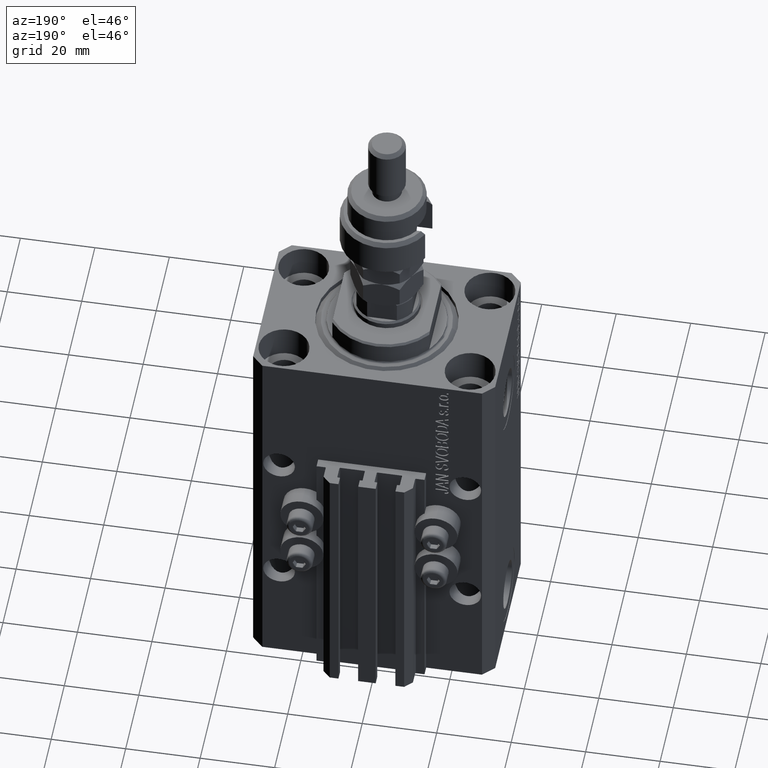
[diagram: clean part render]
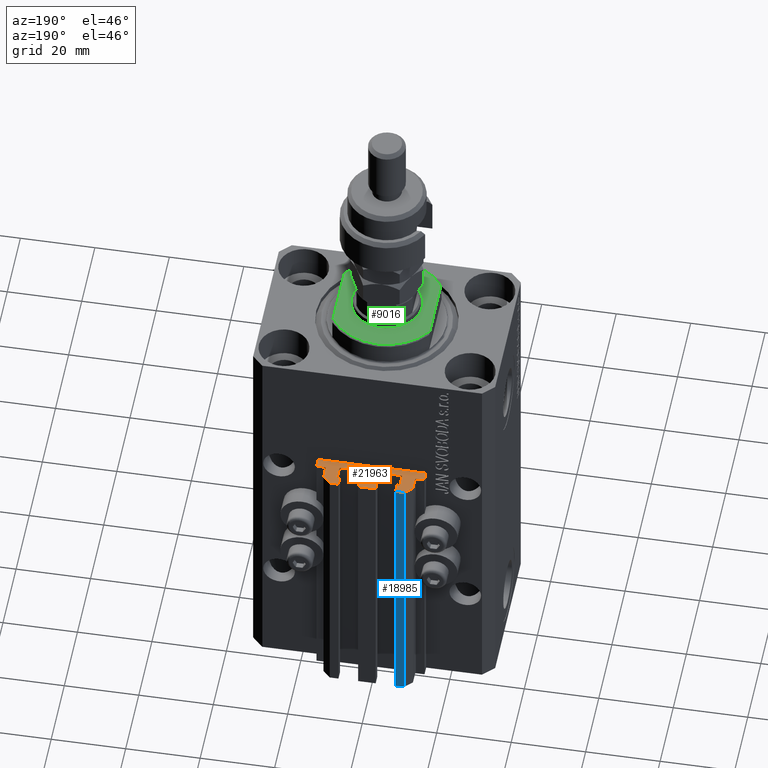
[diagram: same view with three faces highlighted in distinct colors, each labeled with its STEP entity id]
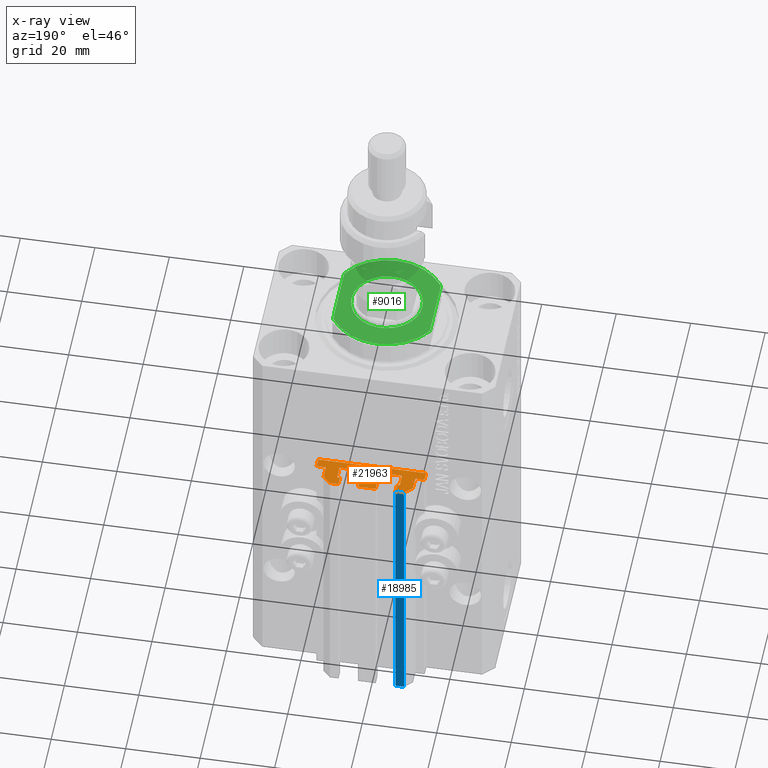
[diagram: x-ray of the same camera — body ghosted, the three highlighted faces saturated]
A machine part, auxiliary view with three faces highlighted in distinct colors.
The next image is the same camera in x-ray (body ghosted, the three faces saturated) — at least one of them is partly hidden behind the body in this view.
Their STEP definitions:

[orange] entity #21963 — the highlighted planar face has unit normal (0, 0, 1).
#43 = CARTESIAN_POINT ( 'NONE',  ( 12.00000000000000178, 28.49999999999950973, -33.00000000000000000 ) ) ;
#513 = VERTEX_POINT ( 'NONE', #1099 ) ;
#530 = DIRECTION ( 'NONE',  ( 0.000000000000000000, 0.000000000000000000, 1.000000000000000000 ) ) ;
#533 = ORIENTED_EDGE ( 'NONE', *, *, #5880, .T. ) ;
#687 = VECTOR ( 'NONE', #7411, 1000.000000000000000 ) ;
#1099 = CARTESIAN_POINT ( 'NONE',  ( -7.650000000000000355, 30.49999999999948486, -33.00000000000000000 ) ) ;
#1314 = DIRECTION ( 'NONE',  ( 0.000000000000000000, -1.000000000000000000, 0.000000000000000000 ) ) ;
#1765 = EDGE_CURVE ( 'NONE', #29212, #40012, #26817, .T. ) ;
#2378 = DIRECTION ( 'NONE',  ( -5.421010862427496532E-16, -1.000000000000000000, 0.000000000000000000 ) ) ;
#2570 = AXIS2_PLACEMENT_3D ( 'NONE', #18717, #3229, #15104 ) ;
#2592 = DIRECTION ( 'NONE',  ( 1.000000000000000000, 0.000000000000000000, 0.000000000000000000 ) ) ;
#2721 = FACE_OUTER_BOUND ( 'NONE', #9311, .T. ) ;
#3171 = DIRECTION ( 'NONE',  ( 1.000000000000000000, 0.000000000000000000, 0.000000000000000000 ) ) ;
#3193 = LINE ( 'NONE', #7581, #31401 ) ;
#3229 = DIRECTION ( 'NONE',  ( 0.000000000000000000, 0.000000000000000000, 1.000000000000000000 ) ) ;
#3578 = ORIENTED_EDGE ( 'NONE', *, *, #33922, .T. ) ;
#3581 = ORIENTED_EDGE ( 'NONE', *, *, #1765, .T. ) ;
#4028 = VERTEX_POINT ( 'NONE', #44834 ) ;
#4196 = DIRECTION ( 'NONE',  ( 1.000000000000000000, -6.308085367188365195E-15, 0.000000000000000000 ) ) ;
#4499 = CARTESIAN_POINT ( 'NONE',  ( -1.600000000000000533, 27.89999999999950120, -33.00000000000000000 ) ) ;
#4636 = ORIENTED_EDGE ( 'NONE', *, *, #36024, .T. ) ;
#4679 = CARTESIAN_POINT ( 'NONE',  ( -10.00000000000000000, 30.49999999999948841, -33.00000000000000000 ) ) ;
#4769 = CARTESIAN_POINT ( 'NONE',  ( -12.00000000000000000, 25.19999999999949125, -33.00000000000000000 ) ) ;
#4836 = DIRECTION ( 'NONE',  ( 1.000000000000000000, 0.000000000000000000, 0.000000000000000000 ) ) ;
#4883 = CARTESIAN_POINT ( 'NONE',  ( 2.349999999999999645, 28.09999999999950049, -33.00000000000000000 ) ) ;
#4884 = EDGE_CURVE ( 'NONE', #18610, #48836, #20412, .T. ) ;
#5089 = CARTESIAN_POINT ( 'NONE',  ( -1.600000000000003197, 27.89999999999950120, -33.00000000000000000 ) ) ;
#5157 = VECTOR ( 'NONE', #22567, 1000.000000000000000 ) ;
#5776 = VECTOR ( 'NONE', #30913, 1000.000000000000000 ) ;
#5880 = EDGE_CURVE ( 'NONE', #21437, #513, #20367, .T. ) ;
#5882 = VECTOR ( 'NONE', #2378, 1000.000000000000000 ) ;
#6109 = VECTOR ( 'NONE', #38719, 1000.000000000000000 ) ;
#6239 = EDGE_CURVE ( 'NONE', #31762, #18610, #9702, .T. ) ;
#6283 = VECTOR ( 'NONE', #45563, 1000.000000000000000 ) ;
#6332 = CARTESIAN_POINT ( 'NONE',  ( 8.200000000000001066, 24.69999999999949125, -33.00000000000000000 ) ) ;
#6499 = CARTESIAN_POINT ( 'NONE',  ( 8.400000000000000355, 27.89999999999950475, -33.00000000000000000 ) ) ;
#6786 = EDGE_CURVE ( 'NONE', #48562, #30151, #23658, .T. ) ;
#6904 = LINE ( 'NONE', #42510, #16391 ) ;
#7168 = VERTEX_POINT ( 'NONE', #36307 ) ;
#7225 = EDGE_CURVE ( 'NONE', #48562, #21437, #20317, .T. ) ;
#7228 = VERTEX_POINT ( 'NONE', #5089 ) ;
#7292 = VERTEX_POINT ( 'NONE', #43247 ) ;
#7366 = VERTEX_POINT ( 'NONE', #4769 ) ;
#7411 = DIRECTION ( 'NONE',  ( -1.000000000000000000, 0.000000000000000000, 0.000000000000000000 ) ) ;
#7439 = VERTEX_POINT ( 'NONE', #16147 ) ;
#7549 = LINE ( 'NONE', #46786, #13134 ) ;
#7581 = CARTESIAN_POINT ( 'NONE',  ( -7.650000000000000355, 30.49999999999948486, -33.00000000000000000 ) ) ;
#7924 = AXIS2_PLACEMENT_3D ( 'NONE', #44562, #39697, #4836 ) ;
#7998 = EDGE_CURVE ( 'NONE', #44729, #37311, #50895, .T. ) ;
#8256 = DIRECTION ( 'NONE',  ( 1.084202172485506406E-15, 1.000000000000000000, 0.000000000000000000 ) ) ;
#8319 = VECTOR ( 'NONE', #20824, 1000.000000000000000 ) ;
#8883 = DIRECTION ( 'NONE',  ( 1.000000000000000000, 6.308085367188405427E-15, 0.000000000000000000 ) ) ;
#9278 = CIRCLE ( 'NONE', #24935, 0.1999999999999981515 ) ;
#9311 = EDGE_LOOP ( 'NONE', ( #48949, #16827, #23021, #3578, #21694, #3581, #42997, #9587, #12821, #21623, #31458, #48627, #23814, #44281, #12456, #25205, #50176, #18412, #16163, #14926, #4636, #12020, #48675, #15819, #20747, #12213, #20433, #50027, #41443, #15747, #533, #37051, #13530, #31347, #38616, #18144 ) ) ;
#9442 = AXIS2_PLACEMENT_3D ( 'NONE', #41915, #14306, #34430 ) ;
#9587 = ORIENTED_EDGE ( 'NONE', *, *, #22373, .T. ) ;
#9702 = LINE ( 'NONE', #30081, #6283 ) ;
#9876 = CARTESIAN_POINT ( 'NONE',  ( -1.800000000000000933, 28.09999999999949694, -33.00000000000000000 ) ) ;
#10465 = DIRECTION ( 'NONE',  ( 1.000000000000000000, 0.000000000000000000, 0.000000000000000000 ) ) ;
#10921 = CARTESIAN_POINT ( 'NONE',  ( -8.199999999999997513, 27.89999999999948699, -33.00000000000000000 ) ) ;
#10945 = CARTESIAN_POINT ( 'NONE',  ( -8.199999999999997513, 28.09999999999948628, -33.00000000000000000 ) ) ;
#10953 = CARTESIAN_POINT ( 'NONE',  ( 14.49999999999999645, 22.49999999999949907, -33.00000000000000000 ) ) ;
#10983 = EDGE_CURVE ( 'NONE', #40272, #7366, #6904, .T. ) ;
#11125 = VECTOR ( 'NONE', #24243, 1000.000000000000000 ) ;
#11293 = CARTESIAN_POINT ( 'NONE',  ( 14.49999999999999822, 24.99999999999950617, -33.00000000000000000 ) ) ;
#11435 = VERTEX_POINT ( 'NONE', #21606 ) ;
#11618 = CARTESIAN_POINT ( 'NONE',  ( -8.400000000000000355, 24.69999999999949480, -33.00000000000000000 ) ) ;
#11716 = DIRECTION ( 'NONE',  ( -1.000000000000000000, 1.476360405086644852E-15, 0.000000000000000000 ) ) ;
#12020 = ORIENTED_EDGE ( 'NONE', *, *, #13151, .T. ) ;
#12213 = ORIENTED_EDGE ( 'NONE', *, *, #45773, .T. ) ;
#12456 = ORIENTED_EDGE ( 'NONE', *, *, #7998, .F. ) ;
#12815 = VERTEX_POINT ( 'NONE', #17434 ) ;
#12821 = ORIENTED_EDGE ( 'NONE', *, *, #30887, .T. ) ;
#13134 = VECTOR ( 'NONE', #4196, 1000.000000000000000 ) ;
#13151 = EDGE_CURVE ( 'NONE', #42183, #14526, #7549, .T. ) ;
#13393 = CARTESIAN_POINT ( 'NONE',  ( 7.649999999999995026, 30.49999999999949196, -33.00000000000000000 ) ) ;
#13471 = DIRECTION ( 'NONE',  ( 1.000000000000000000, 0.000000000000000000, 0.000000000000000000 ) ) ;
#13530 = ORIENTED_EDGE ( 'NONE', *, *, #47695, .T. ) ;
#13588 = DIRECTION ( 'NONE',  ( 0.000000000000000000, -1.000000000000000000, 0.000000000000000000 ) ) ;
#13825 = CARTESIAN_POINT ( 'NONE',  ( 12.00000000000000355, 25.19999999999951257, -33.00000000000000000 ) ) ;
#14306 = DIRECTION ( 'NONE',  ( 0.000000000000000000, 0.000000000000000000, 1.000000000000000000 ) ) ;
#14407 = LINE ( 'NONE', #15178, #5776 ) ;
#14419 = CARTESIAN_POINT ( 'NONE',  ( 2.349999999999999645, 28.09999999999950049, -33.00000000000000000 ) ) ;
#14526 = VERTEX_POINT ( 'NONE', #9876 ) ;
#14926 = ORIENTED_EDGE ( 'NONE', *, *, #51072, .F. ) ;
#14972 = VECTOR ( 'NONE', #31979, 1000.000000000000000 ) ;
#15032 = VECTOR ( 'NONE', #34506, 1000.000000000000000 ) ;
#15104 = DIRECTION ( 'NONE',  ( 1.000000000000000000, 0.000000000000000000, 0.000000000000000000 ) ) ;
#15178 = CARTESIAN_POINT ( 'NONE',  ( 1.600000000000000533, 24.69999999999949480, -33.00000000000000000 ) ) ;
#15186 = VECTOR ( 'NONE', #8256, 1000.000000000000000 ) ;
#15727 = AXIS2_PLACEMENT_3D ( 'NONE', #29565, #25431, #48943 ) ;
#15747 = ORIENTED_EDGE ( 'NONE', *, *, #7225, .T. ) ;
#15815 = VERTEX_POINT ( 'NONE', #44667 ) ;
#15819 = ORIENTED_EDGE ( 'NONE', *, *, #49599, .T. ) ;
#15822 = CARTESIAN_POINT ( 'NONE',  ( -2.350000000000003197, 28.09999999999950049, -33.00000000000000000 ) ) ;
#16147 = CARTESIAN_POINT ( 'NONE',  ( -8.399999999999998579, 24.69999999999949480, -33.00000000000000000 ) ) ;
#16163 = ORIENTED_EDGE ( 'NONE', *, *, #26860, .T. ) ;
#16266 = DIRECTION ( 'NONE',  ( 3.614007241618365534E-16, -1.000000000000000000, 0.000000000000000000 ) ) ;
#16391 = VECTOR ( 'NONE', #26519, 1000.000000000000000 ) ;
#16410 = EDGE_CURVE ( 'NONE', #7168, #12815, #29752, .T. ) ;
#16418 = EDGE_CURVE ( 'NONE', #31762, #7366, #20684, .T. ) ;
#16423 = LINE ( 'NONE', #18120, #41430 ) ;
#16827 = ORIENTED_EDGE ( 'NONE', *, *, #29970, .T. ) ;
#16937 = VERTEX_POINT ( 'NONE', #4883 ) ;
#16974 = CARTESIAN_POINT ( 'NONE',  ( -7.650000000000000355, 28.09999999999948628, -33.00000000000000000 ) ) ;
#17269 = CIRCLE ( 'NONE', #37050, 0.1999999999999979294 ) ;
#17434 = CARTESIAN_POINT ( 'NONE',  ( 8.400000000000000355, 24.69999999999949125, -33.00000000000000000 ) ) ;
#17475 = CARTESIAN_POINT ( 'NONE',  ( -12.00000000000000000, 28.49999999999948841, -33.00000000000000000 ) ) ;
#17620 = EDGE_CURVE ( 'NONE', #47066, #19323, #44590, .T. ) ;
#17887 = AXIS2_PLACEMENT_3D ( 'NONE', #47517, #530, #35878 ) ;
#18120 = CARTESIAN_POINT ( 'NONE',  ( -10.00000000000000000, 30.49999999999948841, -33.00000000000000000 ) ) ;
#18144 = ORIENTED_EDGE ( 'NONE', *, *, #6239, .T. ) ;
#18412 = ORIENTED_EDGE ( 'NONE', *, *, #40979, .T. ) ;
#18457 = PLANE ( 'NONE',  #48808 ) ;
#18610 = VERTEX_POINT ( 'NONE', #40359 ) ;
#18709 = VECTOR ( 'NONE', #24693, 1000.000000000000000 ) ;
#18717 = CARTESIAN_POINT ( 'NONE',  ( -1.800000000000000933, 24.69999999999949480, -33.00000000000000000 ) ) ;
#19222 = DIRECTION ( 'NONE',  ( -6.776263578034385456E-17, -1.000000000000000000, 0.000000000000000000 ) ) ;
#19224 = CIRCLE ( 'NONE', #24950, 0.1999999999999987899 ) ;
#19249 = EDGE_CURVE ( 'NONE', #40012, #11435, #47954, .T. ) ;
#19323 = VERTEX_POINT ( 'NONE', #45840 ) ;
#19472 = LINE ( 'NONE', #4499, #34926 ) ;
#19542 = LINE ( 'NONE', #35282, #15032 ) ;
#19765 = VECTOR ( 'NONE', #13588, 1000.000000000000000 ) ;
#20295 = VECTOR ( 'NONE', #37874, 1000.000000000000000 ) ;
#20317 = LINE ( 'NONE', #36059, #18709 ) ;
#20326 = AXIS2_PLACEMENT_3D ( 'NONE', #10921, #32006, #3171 ) ;
#20367 = LINE ( 'NONE', #36104, #20295 ) ;
#20412 = LINE ( 'NONE', #32294, #22997 ) ;
#20433 = ORIENTED_EDGE ( 'NONE', *, *, #28336, .F. ) ;
#20521 = CARTESIAN_POINT ( 'NONE',  ( -1.800000000000000933, 27.89999999999950120, -33.00000000000000000 ) ) ;
#20602 = CARTESIAN_POINT ( 'NONE',  ( 7.649999999999995026, 30.49999999999949196, -33.00000000000000000 ) ) ;
#20684 = CIRCLE ( 'NONE', #15727, 0.2000000000000005107 ) ;
#20747 = ORIENTED_EDGE ( 'NONE', *, *, #17620, .F. ) ;
#20824 = DIRECTION ( 'NONE',  ( -0.7071067811865507924, 0.7071067811865441310, 0.000000000000000000 ) ) ;
#21428 = EDGE_CURVE ( 'NONE', #7168, #37311, #28851, .T. ) ;
#21429 = VERTEX_POINT ( 'NONE', #44337 ) ;
#21437 = VERTEX_POINT ( 'NONE', #16974 ) ;
#21470 = DIRECTION ( 'NONE',  ( 0.000000000000000000, 0.000000000000000000, 1.000000000000000000 ) ) ;
#21606 = CARTESIAN_POINT ( 'NONE',  ( 9.999999999999994671, 30.49999999999949551, -33.00000000000000000 ) ) ;
#21623 = ORIENTED_EDGE ( 'NONE', *, *, #33630, .T. ) ;
#21694 = ORIENTED_EDGE ( 'NONE', *, *, #24419, .F. ) ;
#21963 = ADVANCED_FACE ( 'NONE', ( #2721 ), #18457, .T. ) ;
#22247 = CARTESIAN_POINT ( 'NONE',  ( -1.800000000000000933, 24.49999999999949551, -33.00000000000000000 ) ) ;
#22373 = EDGE_CURVE ( 'NONE', #11435, #45577, #37102, .T. ) ;
#22436 = DIRECTION ( 'NONE',  ( 0.000000000000000000, 1.000000000000000000, 0.000000000000000000 ) ) ;
#22567 = DIRECTION ( 'NONE',  ( 6.938893903907212600E-16, 1.000000000000000000, 0.000000000000000000 ) ) ;
#22890 = CARTESIAN_POINT ( 'NONE',  ( 14.49999999999999645, 22.49999999999949907, -33.00000000000000000 ) ) ;
#22981 = CARTESIAN_POINT ( 'NONE',  ( -14.50000000000000000, 22.49999999999949907, -33.00000000000000000 ) ) ;
#22997 = VECTOR ( 'NONE', #1314, 1000.000000000000000 ) ;
#23021 = ORIENTED_EDGE ( 'NONE', *, *, #46683, .T. ) ;
#23395 = VERTEX_POINT ( 'NONE', #49557 ) ;
#23658 = CIRCLE ( 'NONE', #20326, 0.1999999999999987899 ) ;
#23814 = ORIENTED_EDGE ( 'NONE', *, *, #16410, .F. ) ;
#23986 = CARTESIAN_POINT ( 'NONE',  ( 8.200000000000001066, 24.49999999999949196, -33.00000000000000000 ) ) ;
#24243 = DIRECTION ( 'NONE',  ( 1.000000000000000000, 0.000000000000000000, 0.000000000000000000 ) ) ;
#24419 = EDGE_CURVE ( 'NONE', #29212, #28015, #19224, .T. ) ;
#24648 = CARTESIAN_POINT ( 'NONE',  ( 1.800000000000000933, 24.49999999999949196, -33.00000000000000000 ) ) ;
#24693 = DIRECTION ( 'NONE',  ( 1.000000000000000000, 0.000000000000000000, 0.000000000000000000 ) ) ;
#24880 = VECTOR ( 'NONE', #36098, 1000.000000000000000 ) ;
#24935 = AXIS2_PLACEMENT_3D ( 'NONE', #48848, #21470, #13471 ) ;
#24950 = AXIS2_PLACEMENT_3D ( 'NONE', #45679, #45422, #2592 ) ;
#24984 = CARTESIAN_POINT ( 'NONE',  ( 9.999999999999994671, 30.49999999999949551, -33.00000000000000000 ) ) ;
#25205 = ORIENTED_EDGE ( 'NONE', *, *, #41535, .T. ) ;
#25356 = DIRECTION ( 'NONE',  ( -0.7071067811865472397, -0.7071067811865479058, 0.000000000000000000 ) ) ;
#25431 = DIRECTION ( 'NONE',  ( 0.000000000000000000, 0.000000000000000000, 1.000000000000000000 ) ) ;
#26519 = DIRECTION ( 'NONE',  ( 0.000000000000000000, -1.000000000000000000, 0.000000000000000000 ) ) ;
#26817 = LINE ( 'NONE', #34042, #47507 ) ;
#26860 = EDGE_CURVE ( 'NONE', #16937, #21429, #44627, .T. ) ;
#27487 = CARTESIAN_POINT ( 'NONE',  ( 12.20000000000000284, 25.19999999999950546, -33.00000000000000000 ) ) ;
#27620 = LINE ( 'NONE', #11618, #15186 ) ;
#28015 = VERTEX_POINT ( 'NONE', #33211 ) ;
#28336 = EDGE_CURVE ( 'NONE', #7439, #4028, #31706, .T. ) ;
#28375 = CARTESIAN_POINT ( 'NONE',  ( -2.350000000000003197, 30.49999999999949907, -33.00000000000000000 ) ) ;
#28727 = CARTESIAN_POINT ( 'NONE',  ( -14.50000000000000000, 22.49999999999949907, -33.00000000000000000 ) ) ;
#28851 = LINE ( 'NONE', #23986, #14972 ) ;
#29212 = VERTEX_POINT ( 'NONE', #13825 ) ;
#29334 = LINE ( 'NONE', #37317, #19765 ) ;
#29565 = CARTESIAN_POINT ( 'NONE',  ( -12.20000000000000107, 25.19999999999949125, -33.00000000000000000 ) ) ;
#29752 = CIRCLE ( 'NONE', #44553, 0.1999999999999987899 ) ;
#29970 = EDGE_CURVE ( 'NONE', #48836, #47635, #46471, .T. ) ;
#30081 = CARTESIAN_POINT ( 'NONE',  ( -12.20000000000000107, 24.99999999999948841, -33.00000000000000000 ) ) ;
#30151 = VERTEX_POINT ( 'NONE', #49787 ) ;
#30157 = CIRCLE ( 'NONE', #7924, 0.2000000000000005107 ) ;
#30560 = LINE ( 'NONE', #10953, #5157 ) ;
#30887 = EDGE_CURVE ( 'NONE', #45577, #33257, #32010, .T. ) ;
#30896 = LINE ( 'NONE', #11293, #687 ) ;
#30913 = DIRECTION ( 'NONE',  ( 0.000000000000000000, 1.000000000000000000, 0.000000000000000000 ) ) ;
#31208 = EDGE_CURVE ( 'NONE', #50493, #40631, #30157, .T. ) ;
#31347 = ORIENTED_EDGE ( 'NONE', *, *, #10983, .T. ) ;
#31401 = VECTOR ( 'NONE', #11716, 1000.000000000000000 ) ;
#31458 = ORIENTED_EDGE ( 'NONE', *, *, #31208, .F. ) ;
#31706 = CIRCLE ( 'NONE', #9442, 0.1999999999999987899 ) ;
#31762 = VERTEX_POINT ( 'NONE', #33413 ) ;
#31979 = DIRECTION ( 'NONE',  ( -1.000000000000000000, 0.000000000000000000, 0.000000000000000000 ) ) ;
#32006 = DIRECTION ( 'NONE',  ( 0.000000000000000000, 0.000000000000000000, 1.000000000000000000 ) ) ;
#32010 = LINE ( 'NONE', #13393, #48302 ) ;
#32294 = CARTESIAN_POINT ( 'NONE',  ( -14.50000000000000000, 24.99999999999949196, -33.00000000000000000 ) ) ;
#33211 = CARTESIAN_POINT ( 'NONE',  ( 12.20000000000000284, 24.99999999999950617, -33.00000000000000000 ) ) ;
#33257 = VERTEX_POINT ( 'NONE', #40784 ) ;
#33413 = CARTESIAN_POINT ( 'NONE',  ( -12.20000000000000107, 24.99999999999948841, -33.00000000000000000 ) ) ;
#33630 = EDGE_CURVE ( 'NONE', #33257, #40631, #43348, .T. ) ;
#33922 = EDGE_CURVE ( 'NONE', #23395, #28015, #30896, .T. ) ;
#34042 = CARTESIAN_POINT ( 'NONE',  ( 12.00000000000000178, 25.19999999999951257, -33.00000000000000000 ) ) ;
#34430 = DIRECTION ( 'NONE',  ( 1.000000000000000000, 0.000000000000000000, 0.000000000000000000 ) ) ;
#34455 = VECTOR ( 'NONE', #50086, 1000.000000000000000 ) ;
#34506 = DIRECTION ( 'NONE',  ( -1.000000000000000000, 0.000000000000000000, 0.000000000000000000 ) ) ;
#34926 = VECTOR ( 'NONE', #19222, 1000.000000000000000 ) ;
#35282 = CARTESIAN_POINT ( 'NONE',  ( -1.800000000000000933, 24.49999999999949551, -33.00000000000000000 ) ) ;
#35878 = DIRECTION ( 'NONE',  ( 1.000000000000000000, 0.000000000000000000, 0.000000000000000000 ) ) ;
#36024 = EDGE_CURVE ( 'NONE', #7292, #42183, #29334, .T. ) ;
#36059 = CARTESIAN_POINT ( 'NONE',  ( -8.199999999999997513, 28.09999999999948628, -33.00000000000000000 ) ) ;
#36098 = DIRECTION ( 'NONE',  ( -1.000000000000000000, -1.476360405086644852E-15, 0.000000000000000000 ) ) ;
#36104 = CARTESIAN_POINT ( 'NONE',  ( -7.650000000000000355, 28.09999999999948628, -33.00000000000000000 ) ) ;
#36284 = VECTOR ( 'NONE', #8883, 1000.000000000000000 ) ;
#36307 = CARTESIAN_POINT ( 'NONE',  ( 8.200000000000001066, 24.49999999999949196, -33.00000000000000000 ) ) ;
#37050 = AXIS2_PLACEMENT_3D ( 'NONE', #20521, #44769, #48147 ) ;
#37051 = ORIENTED_EDGE ( 'NONE', *, *, #38758, .T. ) ;
#37102 = LINE ( 'NONE', #24984, #24880 ) ;
#37252 = EDGE_CURVE ( 'NONE', #7228, #14526, #17269, .T. ) ;
#37311 = VERTEX_POINT ( 'NONE', #24648 ) ;
#37317 = CARTESIAN_POINT ( 'NONE',  ( -2.350000000000003197, 30.49999999999949907, -33.00000000000000000 ) ) ;
#37715 = LINE ( 'NONE', #6499, #5882 ) ;
#37874 = DIRECTION ( 'NONE',  ( 0.000000000000000000, 1.000000000000000000, 0.000000000000000000 ) ) ;
#38192 = CARTESIAN_POINT ( 'NONE',  ( 7.649999999999995914, 28.09999999999950404, -33.00000000000000000 ) ) ;
#38616 = ORIENTED_EDGE ( 'NONE', *, *, #16418, .F. ) ;
#38670 = DIRECTION ( 'NONE',  ( 0.000000000000000000, 1.000000000000000000, 0.000000000000000000 ) ) ;
#38719 = DIRECTION ( 'NONE',  ( 1.000000000000000000, 0.000000000000000000, 0.000000000000000000 ) ) ;
#38758 = EDGE_CURVE ( 'NONE', #513, #47886, #3193, .T. ) ;
#39697 = DIRECTION ( 'NONE',  ( 0.000000000000000000, 0.000000000000000000, 1.000000000000000000 ) ) ;
#39717 = CARTESIAN_POINT ( 'NONE',  ( 1.599999999999999645, 24.69999999999949480, -33.00000000000000000 ) ) ;
#39765 = VERTEX_POINT ( 'NONE', #40325 ) ;
#40012 = VERTEX_POINT ( 'NONE', #43 ) ;
#40272 = VERTEX_POINT ( 'NONE', #17475 ) ;
#40325 = CARTESIAN_POINT ( 'NONE',  ( 1.600000000000000533, 27.89999999999950120, -33.00000000000000000 ) ) ;
#40359 = CARTESIAN_POINT ( 'NONE',  ( -14.50000000000000000, 24.99999999999949196, -33.00000000000000000 ) ) ;
#40631 = VERTEX_POINT ( 'NONE', #43034 ) ;
#40682 = CARTESIAN_POINT ( 'NONE',  ( 12.00000000000000178, 28.49999999999950973, -33.00000000000000000 ) ) ;
#40784 = CARTESIAN_POINT ( 'NONE',  ( 7.649999999999995914, 28.09999999999950404, -33.00000000000000000 ) ) ;
#40979 = EDGE_CURVE ( 'NONE', #15815, #16937, #48626, .T. ) ;
#41430 = VECTOR ( 'NONE', #25356, 999.9999999999998863 ) ;
#41443 = ORIENTED_EDGE ( 'NONE', *, *, #6786, .F. ) ;
#41535 = EDGE_CURVE ( 'NONE', #44729, #39765, #14407, .T. ) ;
#41915 = CARTESIAN_POINT ( 'NONE',  ( -8.199999999999999289, 24.69999999999949480, -33.00000000000000000 ) ) ;
#42183 = VERTEX_POINT ( 'NONE', #15822 ) ;
#42510 = CARTESIAN_POINT ( 'NONE',  ( -12.00000000000000000, 28.49999999999948841, -33.00000000000000000 ) ) ;
#42997 = ORIENTED_EDGE ( 'NONE', *, *, #19249, .T. ) ;
#43034 = CARTESIAN_POINT ( 'NONE',  ( 8.200000000000001066, 28.09999999999950759, -33.00000000000000000 ) ) ;
#43247 = CARTESIAN_POINT ( 'NONE',  ( -2.350000000000003197, 30.49999999999949907, -33.00000000000000000 ) ) ;
#43348 = LINE ( 'NONE', #38192, #34455 ) ;
#44043 = VECTOR ( 'NONE', #38670, 1000.000000000000000 ) ;
#44107 = LINE ( 'NONE', #28375, #11125 ) ;
#44281 = ORIENTED_EDGE ( 'NONE', *, *, #21428, .T. ) ;
#44337 = CARTESIAN_POINT ( 'NONE',  ( 2.349999999999999645, 30.49999999999949907, -33.00000000000000000 ) ) ;
#44352 = EDGE_CURVE ( 'NONE', #50493, #12815, #37715, .T. ) ;
#44553 = AXIS2_PLACEMENT_3D ( 'NONE', #6332, #49193, #10465 ) ;
#44562 = CARTESIAN_POINT ( 'NONE',  ( 8.200000000000001066, 27.89999999999950475, -33.00000000000000000 ) ) ;
#44590 = CIRCLE ( 'NONE', #2570, 0.1999999999999994282 ) ;
#44627 = LINE ( 'NONE', #14419, #44043 ) ;
#44667 = CARTESIAN_POINT ( 'NONE',  ( 1.800000000000000933, 28.09999999999950049, -33.00000000000000000 ) ) ;
#44729 = VERTEX_POINT ( 'NONE', #39717 ) ;
#44741 = CARTESIAN_POINT ( 'NONE',  ( 1.800000000000000933, 28.09999999999949694, -33.00000000000000000 ) ) ;
#44769 = DIRECTION ( 'NONE',  ( 0.000000000000000000, 0.000000000000000000, 1.000000000000000000 ) ) ;
#44834 = CARTESIAN_POINT ( 'NONE',  ( -8.199999999999999289, 24.49999999999949551, -33.00000000000000000 ) ) ;
#45422 = DIRECTION ( 'NONE',  ( 0.000000000000000000, 0.000000000000000000, 1.000000000000000000 ) ) ;
#45563 = DIRECTION ( 'NONE',  ( -1.000000000000000000, 1.508455196501571429E-15, 0.000000000000000000 ) ) ;
#45577 = VERTEX_POINT ( 'NONE', #20602 ) ;
#45679 = CARTESIAN_POINT ( 'NONE',  ( 12.20000000000000284, 25.19999999999950546, -33.00000000000000000 ) ) ;
#45773 = EDGE_CURVE ( 'NONE', #47066, #4028, #19542, .T. ) ;
#45840 = CARTESIAN_POINT ( 'NONE',  ( -1.600000000000000755, 24.69999999999949480, -33.00000000000000000 ) ) ;
#45982 = EDGE_CURVE ( 'NONE', #15815, #39765, #9278, .T. ) ;
#46471 = LINE ( 'NONE', #22981, #6109 ) ;
#46683 = EDGE_CURVE ( 'NONE', #47635, #23395, #30560, .T. ) ;
#46786 = CARTESIAN_POINT ( 'NONE',  ( -2.350000000000003197, 28.09999999999950049, -33.00000000000000000 ) ) ;
#46845 = DIRECTION ( 'NONE',  ( 1.000000000000000000, 0.000000000000000000, -0.000000000000000000 ) ) ;
#47066 = VERTEX_POINT ( 'NONE', #22247 ) ;
#47507 = VECTOR ( 'NONE', #22436, 1000.000000000000000 ) ;
#47517 = CARTESIAN_POINT ( 'NONE',  ( 1.800000000000000933, 24.69999999999949480, -33.00000000000000000 ) ) ;
#47635 = VERTEX_POINT ( 'NONE', #22890 ) ;
#47695 = EDGE_CURVE ( 'NONE', #47886, #40272, #16423, .T. ) ;
#47886 = VERTEX_POINT ( 'NONE', #4679 ) ;
#47954 = LINE ( 'NONE', #40682, #8319 ) ;
#48112 = CARTESIAN_POINT ( 'NONE',  ( 8.400000000000000355, 27.89999999999950475, -33.00000000000000000 ) ) ;
#48147 = DIRECTION ( 'NONE',  ( 1.000000000000000000, 0.000000000000000000, 0.000000000000000000 ) ) ;
#48302 = VECTOR ( 'NONE', #16266, 1000.000000000000000 ) ;
#48562 = VERTEX_POINT ( 'NONE', #10945 ) ;
#48626 = LINE ( 'NONE', #44741, #36284 ) ;
#48627 = ORIENTED_EDGE ( 'NONE', *, *, #44352, .T. ) ;
#48675 = ORIENTED_EDGE ( 'NONE', *, *, #37252, .F. ) ;
#48808 = AXIS2_PLACEMENT_3D ( 'NONE', #27487, #49961, #46845 ) ;
#48836 = VERTEX_POINT ( 'NONE', #28727 ) ;
#48848 = CARTESIAN_POINT ( 'NONE',  ( 1.800000000000000933, 27.89999999999950120, -33.00000000000000000 ) ) ;
#48943 = DIRECTION ( 'NONE',  ( 1.000000000000000000, 0.000000000000000000, 0.000000000000000000 ) ) ;
#48949 = ORIENTED_EDGE ( 'NONE', *, *, #4884, .T. ) ;
#49193 = DIRECTION ( 'NONE',  ( 0.000000000000000000, 0.000000000000000000, 1.000000000000000000 ) ) ;
#49557 = CARTESIAN_POINT ( 'NONE',  ( 14.49999999999999822, 24.99999999999950617, -33.00000000000000000 ) ) ;
#49599 = EDGE_CURVE ( 'NONE', #7228, #19323, #19472, .T. ) ;
#49787 = CARTESIAN_POINT ( 'NONE',  ( -8.399999999999996803, 27.89999999999948699, -33.00000000000000000 ) ) ;
#49961 = DIRECTION ( 'NONE',  ( 0.000000000000000000, 0.000000000000000000, 1.000000000000000000 ) ) ;
#50027 = ORIENTED_EDGE ( 'NONE', *, *, #50995, .T. ) ;
#50086 = DIRECTION ( 'NONE',  ( 1.000000000000000000, 6.308085367188338373E-15, 0.000000000000000000 ) ) ;
#50176 = ORIENTED_EDGE ( 'NONE', *, *, #45982, .F. ) ;
#50493 = VERTEX_POINT ( 'NONE', #48112 ) ;
#50895 = CIRCLE ( 'NONE', #17887, 0.2000000000000016209 ) ;
#50995 = EDGE_CURVE ( 'NONE', #7439, #30151, #27620, .T. ) ;
#51072 = EDGE_CURVE ( 'NONE', #7292, #21429, #44107, .T. ) ;

[blue] entity #18985 — the highlighted planar face has unit normal (0, 1, 0).
#513 = VERTEX_POINT ( 'NONE', #1099 ) ;
#1099 = CARTESIAN_POINT ( 'NONE',  ( -7.650000000000000355, 30.49999999999948486, -33.00000000000000000 ) ) ;
#3193 = LINE ( 'NONE', #7581, #31401 ) ;
#4679 = CARTESIAN_POINT ( 'NONE',  ( -10.00000000000000000, 30.49999999999948841, -33.00000000000000000 ) ) ;
#4815 = VERTEX_POINT ( 'NONE', #5432 ) ;
#4842 = ORIENTED_EDGE ( 'NONE', *, *, #49077, .T. ) ;
#4951 = ORIENTED_EDGE ( 'NONE', *, *, #20481, .F. ) ;
#5040 = VECTOR ( 'NONE', #47628, 1000.000000000000000 ) ;
#5432 = CARTESIAN_POINT ( 'NONE',  ( -7.650000000000000355, 30.49999999999948486, -107.0000000000000000 ) ) ;
#7581 = CARTESIAN_POINT ( 'NONE',  ( -7.650000000000000355, 30.49999999999948486, -33.00000000000000000 ) ) ;
#9193 = AXIS2_PLACEMENT_3D ( 'NONE', #13448, #29449, #18349 ) ;
#11716 = DIRECTION ( 'NONE',  ( -1.000000000000000000, 1.476360405086644852E-15, 0.000000000000000000 ) ) ;
#13448 = CARTESIAN_POINT ( 'NONE',  ( -7.650000000000000355, 30.49999999999948486, -107.0000000000000000 ) ) ;
#13703 = PLANE ( 'NONE',  #9193 ) ;
#14690 = LINE ( 'NONE', #26563, #37992 ) ;
#15145 = VECTOR ( 'NONE', #41462, 1000.000000000000000 ) ;
#16628 = EDGE_CURVE ( 'NONE', #30547, #47886, #37427, .T. ) ;
#17402 = ORIENTED_EDGE ( 'NONE', *, *, #16628, .T. ) ;
#17731 = LINE ( 'NONE', #37082, #15145 ) ;
#18349 = DIRECTION ( 'NONE',  ( -1.000000000000000000, 1.476360405086644852E-15, 0.000000000000000000 ) ) ;
#18985 = ADVANCED_FACE ( 'NONE', ( #49073 ), #13703, .T. ) ;
#20481 = EDGE_CURVE ( 'NONE', #4815, #513, #14690, .T. ) ;
#26563 = CARTESIAN_POINT ( 'NONE',  ( -7.650000000000000355, 30.49999999999948486, -107.0000000000000000 ) ) ;
#29449 = DIRECTION ( 'NONE',  ( 1.476360405086644852E-15, 1.000000000000000000, -0.000000000000000000 ) ) ;
#30340 = CARTESIAN_POINT ( 'NONE',  ( -10.00000000000000000, 30.49999999999948841, -107.0000000000000000 ) ) ;
#30547 = VERTEX_POINT ( 'NONE', #30340 ) ;
#31401 = VECTOR ( 'NONE', #11716, 1000.000000000000000 ) ;
#31872 = CARTESIAN_POINT ( 'NONE',  ( -10.00000000000000000, 30.49999999999948841, -107.0000000000000000 ) ) ;
#37082 = CARTESIAN_POINT ( 'NONE',  ( -7.650000000000000355, 30.49999999999948486, -107.0000000000000000 ) ) ;
#37427 = LINE ( 'NONE', #31872, #5040 ) ;
#37992 = VECTOR ( 'NONE', #42297, 1000.000000000000000 ) ;
#38758 = EDGE_CURVE ( 'NONE', #513, #47886, #3193, .T. ) ;
#39043 = EDGE_LOOP ( 'NONE', ( #43400, #4951, #4842, #17402 ) ) ;
#41462 = DIRECTION ( 'NONE',  ( -1.000000000000000000, 1.476360405086644852E-15, 0.000000000000000000 ) ) ;
#42297 = DIRECTION ( 'NONE',  ( 0.000000000000000000, 0.000000000000000000, 1.000000000000000000 ) ) ;
#43400 = ORIENTED_EDGE ( 'NONE', *, *, #38758, .F. ) ;
#47628 = DIRECTION ( 'NONE',  ( 0.000000000000000000, 0.000000000000000000, 1.000000000000000000 ) ) ;
#47886 = VERTEX_POINT ( 'NONE', #4679 ) ;
#49073 = FACE_OUTER_BOUND ( 'NONE', #39043, .T. ) ;
#49077 = EDGE_CURVE ( 'NONE', #4815, #30547, #17731, .T. ) ;

[green] entity #9016 — the highlighted planar face has unit normal (0, 0, 1).
#187 = EDGE_CURVE ( 'NONE', #31120, #44194, #30933, .T. ) ;
#1033 = EDGE_CURVE ( 'NONE', #41699, #43317, #14502, .T. ) ;
#1213 = CARTESIAN_POINT ( 'NONE',  ( -13.00000000000000000, 8.440971508067139695, -6.500000000000000000 ) ) ;
#1509 = EDGE_CURVE ( 'NONE', #43317, #15832, #41588, .T. ) ;
#1969 = DIRECTION ( 'NONE',  ( -1.000000000000000000, 0.000000000000000000, 0.000000000000000000 ) ) ;
#4477 = ORIENTED_EDGE ( 'NONE', *, *, #187, .T. ) ;
#4680 = LINE ( 'NONE', #47791, #47818 ) ;
#5104 = CARTESIAN_POINT ( 'NONE',  ( 0.000000000000000000, 0.000000000000000000, -6.500000000000000000 ) ) ;
#5560 = EDGE_LOOP ( 'NONE', ( #4477, #25074 ) ) ;
#5850 = DIRECTION ( 'NONE',  ( -1.000000000000000000, 0.000000000000000000, -0.000000000000000000 ) ) ;
#6391 = CARTESIAN_POINT ( 'NONE',  ( 0.000000000000000000, 0.000000000000000000, -6.500000000000000000 ) ) ;
#9016 = ADVANCED_FACE ( 'NONE', ( #32463, #16717 ), #41203, .T. ) ;
#9359 = CARTESIAN_POINT ( 'NONE',  ( 9.500000000000015987, 1.163414459189987457E-15, -6.500000000000000000 ) ) ;
#9400 = EDGE_CURVE ( 'NONE', #44194, #31120, #25364, .T. ) ;
#11069 = DIRECTION ( 'NONE',  ( -1.000000000000000000, 0.000000000000000000, 0.000000000000000000 ) ) ;
#14415 = CARTESIAN_POINT ( 'NONE',  ( -9.500000000000015987, 0.000000000000000000, -6.500000000000000000 ) ) ;
#14502 = CIRCLE ( 'NONE', #30153, 15.50000000000003730 ) ;
#14881 = EDGE_CURVE ( 'NONE', #41699, #41451, #4680, .T. ) ;
#15832 = VERTEX_POINT ( 'NONE', #24548 ) ;
#16717 = FACE_OUTER_BOUND ( 'NONE', #17316, .T. ) ;
#17316 = EDGE_LOOP ( 'NONE', ( #28706, #30219, #42399, #40921 ) ) ;
#18219 = CARTESIAN_POINT ( 'NONE',  ( 0.000000000000000000, 0.000000000000000000, -6.500000000000000000 ) ) ;
#18780 = AXIS2_PLACEMENT_3D ( 'NONE', #22826, #19212, #39585 ) ;
#19212 = DIRECTION ( 'NONE',  ( -0.000000000000000000, -0.000000000000000000, 1.000000000000000000 ) ) ;
#19879 = CARTESIAN_POINT ( 'NONE',  ( -13.00000000000000000, -8.440971508067139695, -6.500000000000000000 ) ) ;
#22243 = CARTESIAN_POINT ( 'NONE',  ( 13.00000000000000000, -43.08131845707602992, -6.500000000000000000 ) ) ;
#22826 = CARTESIAN_POINT ( 'NONE',  ( 0.000000000000000000, 0.000000000000000000, -6.500000000000000000 ) ) ;
#24548 = CARTESIAN_POINT ( 'NONE',  ( 13.00000000000000000, -8.440971508067139695, -6.500000000000000000 ) ) ;
#25074 = ORIENTED_EDGE ( 'NONE', *, *, #9400, .T. ) ;
#25364 = CIRCLE ( 'NONE', #18780, 9.500000000000015987 ) ;
#28706 = ORIENTED_EDGE ( 'NONE', *, *, #1033, .T. ) ;
#30153 = AXIS2_PLACEMENT_3D ( 'NONE', #50573, #31188, #11069 ) ;
#30219 = ORIENTED_EDGE ( 'NONE', *, *, #1509, .T. ) ;
#30426 = EDGE_CURVE ( 'NONE', #15832, #41451, #37658, .T. ) ;
#30933 = CIRCLE ( 'NONE', #45787, 9.500000000000015987 ) ;
#31120 = VERTEX_POINT ( 'NONE', #14415 ) ;
#31188 = DIRECTION ( 'NONE',  ( 0.000000000000000000, 0.000000000000000000, -1.000000000000000000 ) ) ;
#32463 = FACE_BOUND ( 'NONE', #5560, .T. ) ;
#34515 = DIRECTION ( 'NONE',  ( -0.000000000000000000, -0.000000000000000000, 1.000000000000000000 ) ) ;
#34774 = DIRECTION ( 'NONE',  ( -1.000000000000000000, 0.000000000000000000, 0.000000000000000000 ) ) ;
#37658 = CIRCLE ( 'NONE', #46759, 15.50000000000003730 ) ;
#37972 = DIRECTION ( 'NONE',  ( 0.000000000000000000, -1.000000000000000000, -0.000000000000000000 ) ) ;
#39320 = CARTESIAN_POINT ( 'NONE',  ( 13.00000000000000000, 8.440971508067139695, -6.500000000000000000 ) ) ;
#39585 = DIRECTION ( 'NONE',  ( -1.000000000000000000, 0.000000000000000000, 0.000000000000000000 ) ) ;
#40921 = ORIENTED_EDGE ( 'NONE', *, *, #14881, .F. ) ;
#41203 = PLANE ( 'NONE',  #42645 ) ;
#41451 = VERTEX_POINT ( 'NONE', #19879 ) ;
#41588 = LINE ( 'NONE', #22243, #44999 ) ;
#41699 = VERTEX_POINT ( 'NONE', #1213 ) ;
#42399 = ORIENTED_EDGE ( 'NONE', *, *, #30426, .T. ) ;
#42645 = AXIS2_PLACEMENT_3D ( 'NONE', #5104, #48459, #5850 ) ;
#43317 = VERTEX_POINT ( 'NONE', #39320 ) ;
#44158 = DIRECTION ( 'NONE',  ( -0.000000000000000000, -1.000000000000000000, -0.000000000000000000 ) ) ;
#44194 = VERTEX_POINT ( 'NONE', #9359 ) ;
#44811 = DIRECTION ( 'NONE',  ( 0.000000000000000000, 0.000000000000000000, -1.000000000000000000 ) ) ;
#44999 = VECTOR ( 'NONE', #37972, 1000.000000000000000 ) ;
#45787 = AXIS2_PLACEMENT_3D ( 'NONE', #6391, #34515, #34774 ) ;
#46759 = AXIS2_PLACEMENT_3D ( 'NONE', #18219, #44811, #1969 ) ;
#47791 = CARTESIAN_POINT ( 'NONE',  ( -13.00000000000000000, -43.08131845707602992, -6.500000000000000000 ) ) ;
#47818 = VECTOR ( 'NONE', #44158, 1000.000000000000000 ) ;
#48459 = DIRECTION ( 'NONE',  ( 0.000000000000000000, 0.000000000000000000, -1.000000000000000000 ) ) ;
#50573 = CARTESIAN_POINT ( 'NONE',  ( 0.000000000000000000, 0.000000000000000000, -6.500000000000000000 ) ) ;